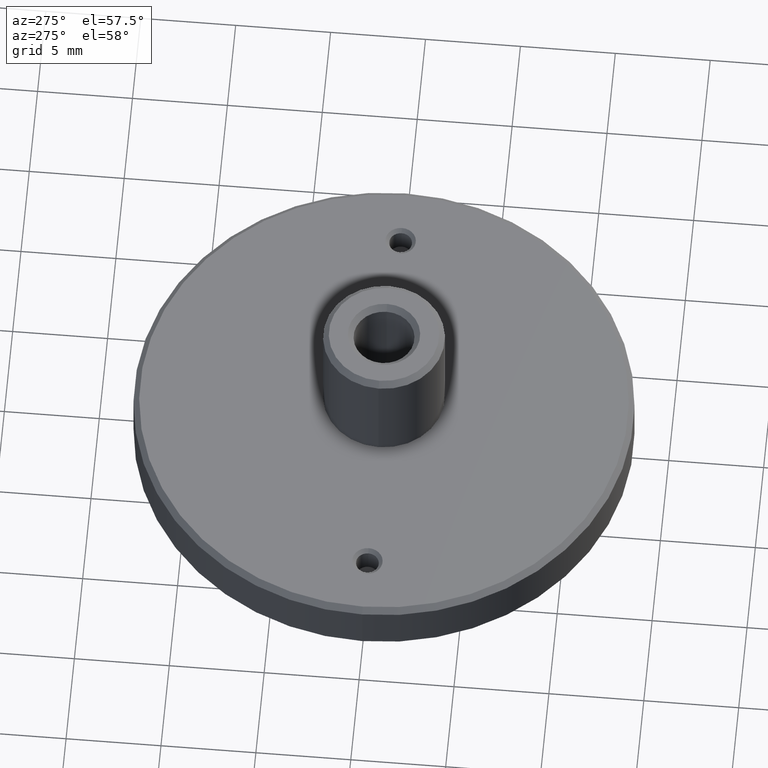
[diagram: clean part render]
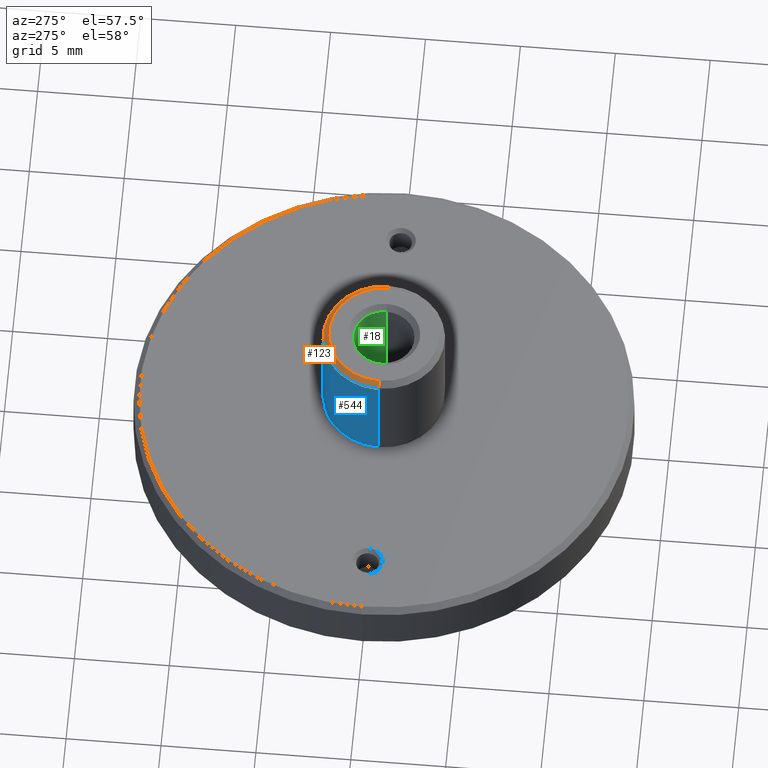
[diagram: same view with three faces highlighted in distinct colors, each labeled with its STEP entity id]
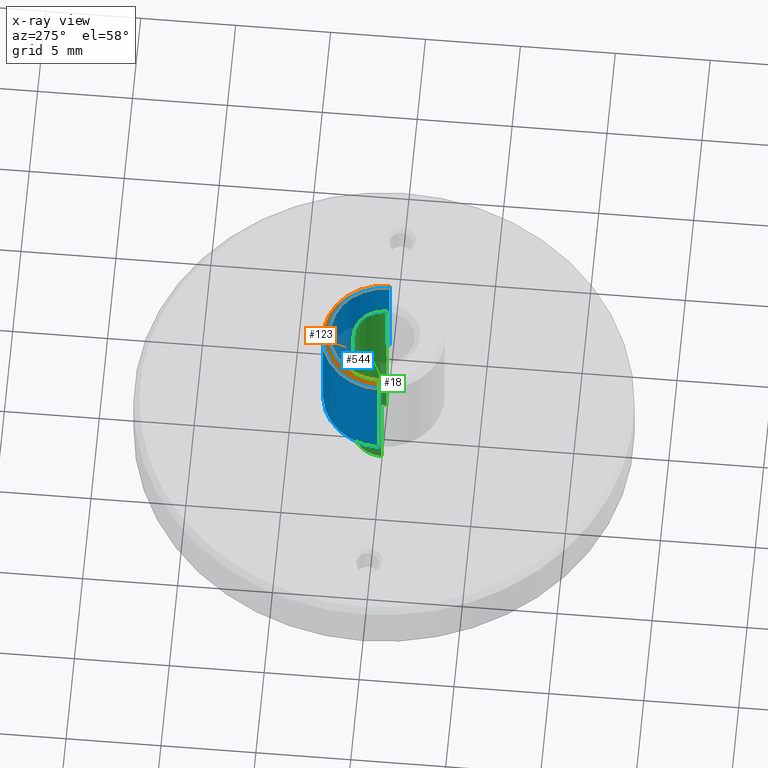
[diagram: x-ray of the same camera — body ghosted, the three highlighted faces saturated]
A machine part, auxiliary view with three faces highlighted in distinct colors.
The next image is the same camera in x-ray (body ghosted, the three faces saturated) — at least one of them is partly hidden behind the body in this view.
Their STEP definitions:

[orange] entity #123 — the highlighted conical surface has half-angle 45 deg.
#16 = DIRECTION ( 'NONE',  ( -0.000000000000000000, -0.000000000000000000, 1.000000000000000000 ) ) ;
#32 = CIRCLE ( 'NONE', #595, 3.200000000000000178 ) ;
#85 = CONICAL_SURFACE ( 'NONE', #631, 2.899999999999999911, 0.7853981633974490562 ) ;
#96 = DIRECTION ( 'NONE',  ( -0.7071067811865481278, 0.000000000000000000, -0.7071067811865470176 ) ) ;
#106 = VERTEX_POINT ( 'NONE', #606 ) ;
#112 = CARTESIAN_POINT ( 'NONE',  ( -3.200000000000000178, 0.000000000000000000, 9.400000000000000355 ) ) ;
#123 = ADVANCED_FACE ( 'NONE', ( #888 ), #85, .T. ) ;
#256 = DIRECTION ( 'NONE',  ( -1.000000000000000000, 0.000000000000000000, 0.000000000000000000 ) ) ;
#286 = EDGE_CURVE ( 'NONE', #106, #750, #422, .T. ) ;
#288 = CARTESIAN_POINT ( 'NONE',  ( 3.200000000000000178, 3.918869757271530460E-16, 9.400000000000000355 ) ) ;
#312 = DIRECTION ( 'NONE',  ( -1.000000000000000000, 0.000000000000000000, 0.000000000000000000 ) ) ;
#323 = CARTESIAN_POINT ( 'NONE',  ( -2.899999999999999911, 0.000000000000000000, 9.700000000000001066 ) ) ;
#328 = EDGE_CURVE ( 'NONE', #106, #918, #454, .T. ) ;
#341 = EDGE_CURVE ( 'NONE', #750, #434, #519, .T. ) ;
#344 = DIRECTION ( 'NONE',  ( 0.000000000000000000, 0.000000000000000000, -1.000000000000000000 ) ) ;
#359 = CARTESIAN_POINT ( 'NONE',  ( 0.000000000000000000, 0.000000000000000000, 9.700000000000001066 ) ) ;
#372 = CARTESIAN_POINT ( 'NONE',  ( 0.000000000000000000, 0.000000000000000000, 9.400000000000000355 ) ) ;
#421 = EDGE_CURVE ( 'NONE', #918, #434, #32, .T. ) ;
#422 = CIRCLE ( 'NONE', #729, 2.899999999999999911 ) ;
#434 = VERTEX_POINT ( 'NONE', #112 ) ;
#454 = LINE ( 'NONE', #880, #773 ) ;
#468 = VECTOR ( 'NONE', #96, 1000.000000000000000 ) ;
#493 = EDGE_LOOP ( 'NONE', ( #506, #758, #808, #862 ) ) ;
#506 = ORIENTED_EDGE ( 'NONE', *, *, #286, .F. ) ;
#519 = LINE ( 'NONE', #653, #468 ) ;
#595 = AXIS2_PLACEMENT_3D ( 'NONE', #372, #16, #312 ) ;
#606 = CARTESIAN_POINT ( 'NONE',  ( 2.899999999999999911, 3.735172737399427639E-16, 9.700000000000001066 ) ) ;
#631 = AXIS2_PLACEMENT_3D ( 'NONE', #899, #344, #256 ) ;
#637 = DIRECTION ( 'NONE',  ( -0.000000000000000000, -0.000000000000000000, 1.000000000000000000 ) ) ;
#653 = CARTESIAN_POINT ( 'NONE',  ( -2.899999999999999911, 0.000000000000000000, 9.700000000000001066 ) ) ;
#729 = AXIS2_PLACEMENT_3D ( 'NONE', #359, #637, #849 ) ;
#750 = VERTEX_POINT ( 'NONE', #323 ) ;
#758 = ORIENTED_EDGE ( 'NONE', *, *, #328, .T. ) ;
#773 = VECTOR ( 'NONE', #885, 1000.000000000000000 ) ;
#808 = ORIENTED_EDGE ( 'NONE', *, *, #421, .T. ) ;
#849 = DIRECTION ( 'NONE',  ( -1.000000000000000000, 0.000000000000000000, 0.000000000000000000 ) ) ;
#862 = ORIENTED_EDGE ( 'NONE', *, *, #341, .F. ) ;
#880 = CARTESIAN_POINT ( 'NONE',  ( 2.899999999999999911, 3.551475717527323832E-16, 9.700000000000001066 ) ) ;
#885 = DIRECTION ( 'NONE',  ( 0.7071067811865481278, 8.659560562354940254E-17, -0.7071067811865470176 ) ) ;
#888 = FACE_OUTER_BOUND ( 'NONE', #493, .T. ) ;
#899 = CARTESIAN_POINT ( 'NONE',  ( 0.000000000000000000, 0.000000000000000000, 9.700000000000001066 ) ) ;
#918 = VERTEX_POINT ( 'NONE', #288 ) ;

[blue] entity #544 — the highlighted cylindrical surface (partial cylindrical patch) has radius 3.2 mm, axis along (0, 0, -1).
#1 = ORIENTED_EDGE ( 'NONE', *, *, #421, .F. ) ;
#16 = DIRECTION ( 'NONE',  ( -0.000000000000000000, -0.000000000000000000, 1.000000000000000000 ) ) ;
#32 = CIRCLE ( 'NONE', #595, 3.200000000000000178 ) ;
#104 = CIRCLE ( 'NONE', #851, 3.200000000000000178 ) ;
#112 = CARTESIAN_POINT ( 'NONE',  ( -3.200000000000000178, 0.000000000000000000, 9.400000000000000355 ) ) ;
#120 = DIRECTION ( 'NONE',  ( 0.000000000000000000, 0.000000000000000000, -1.000000000000000000 ) ) ;
#134 = CYLINDRICAL_SURFACE ( 'NONE', #648, 3.200000000000000178 ) ;
#160 = EDGE_CURVE ( 'NONE', #434, #705, #894, .T. ) ;
#163 = CARTESIAN_POINT ( 'NONE',  ( 3.200000000000000178, 3.918869757271530460E-16, 9.400000000000000355 ) ) ;
#170 = EDGE_LOOP ( 'NONE', ( #1, #287, #711, #658 ) ) ;
#222 = VERTEX_POINT ( 'NONE', #355 ) ;
#287 = ORIENTED_EDGE ( 'NONE', *, *, #681, .T. ) ;
#288 = CARTESIAN_POINT ( 'NONE',  ( 3.200000000000000178, 3.918869757271530460E-16, 9.400000000000000355 ) ) ;
#312 = DIRECTION ( 'NONE',  ( -1.000000000000000000, 0.000000000000000000, 0.000000000000000000 ) ) ;
#355 = CARTESIAN_POINT ( 'NONE',  ( 3.200000000000000178, 3.918869757271530460E-16, 3.700000000000000178 ) ) ;
#366 = LINE ( 'NONE', #163, #400 ) ;
#372 = CARTESIAN_POINT ( 'NONE',  ( 0.000000000000000000, 0.000000000000000000, 9.400000000000000355 ) ) ;
#400 = VECTOR ( 'NONE', #596, 1000.000000000000000 ) ;
#414 = CARTESIAN_POINT ( 'NONE',  ( 0.000000000000000000, 0.000000000000000000, 9.400000000000000355 ) ) ;
#421 = EDGE_CURVE ( 'NONE', #918, #434, #32, .T. ) ;
#434 = VERTEX_POINT ( 'NONE', #112 ) ;
#544 = ADVANCED_FACE ( 'NONE', ( #760 ), #134, .T. ) ;
#561 = VECTOR ( 'NONE', #120, 1000.000000000000000 ) ;
#595 = AXIS2_PLACEMENT_3D ( 'NONE', #372, #16, #312 ) ;
#596 = DIRECTION ( 'NONE',  ( 0.000000000000000000, 0.000000000000000000, -1.000000000000000000 ) ) ;
#648 = AXIS2_PLACEMENT_3D ( 'NONE', #414, #907, #696 ) ;
#658 = ORIENTED_EDGE ( 'NONE', *, *, #160, .F. ) ;
#668 = DIRECTION ( 'NONE',  ( -0.000000000000000000, -0.000000000000000000, 1.000000000000000000 ) ) ;
#681 = EDGE_CURVE ( 'NONE', #918, #222, #366, .T. ) ;
#696 = DIRECTION ( 'NONE',  ( -1.000000000000000000, 0.000000000000000000, 0.000000000000000000 ) ) ;
#705 = VERTEX_POINT ( 'NONE', #866 ) ;
#711 = ORIENTED_EDGE ( 'NONE', *, *, #783, .T. ) ;
#743 = CARTESIAN_POINT ( 'NONE',  ( 0.000000000000000000, 0.000000000000000000, 3.700000000000000178 ) ) ;
#748 = DIRECTION ( 'NONE',  ( -1.000000000000000000, 0.000000000000000000, 0.000000000000000000 ) ) ;
#760 = FACE_OUTER_BOUND ( 'NONE', #170, .T. ) ;
#783 = EDGE_CURVE ( 'NONE', #222, #705, #104, .T. ) ;
#828 = CARTESIAN_POINT ( 'NONE',  ( -3.200000000000000178, 0.000000000000000000, 9.400000000000000355 ) ) ;
#851 = AXIS2_PLACEMENT_3D ( 'NONE', #743, #668, #748 ) ;
#866 = CARTESIAN_POINT ( 'NONE',  ( -3.200000000000000178, 0.000000000000000000, 3.700000000000000178 ) ) ;
#894 = LINE ( 'NONE', #828, #561 ) ;
#907 = DIRECTION ( 'NONE',  ( 0.000000000000000000, 0.000000000000000000, -1.000000000000000000 ) ) ;
#918 = VERTEX_POINT ( 'NONE', #288 ) ;

[green] entity #18 — the highlighted cylindrical surface (edge-blend (fillet) strip) has radius 1.6 mm, axis along (0, -0, 1).
#2 = CARTESIAN_POINT ( 'NONE',  ( 1.600000000000000089, 0.000000000000000000, 0.3000000000000000444 ) ) ;
#18 = ADVANCED_FACE ( 'NONE', ( #470 ), #121, .F. ) ;
#47 = VERTEX_POINT ( 'NONE', #324 ) ;
#93 = DIRECTION ( 'NONE',  ( -0.000000000000000000, -0.000000000000000000, -1.000000000000000000 ) ) ;
#100 = CARTESIAN_POINT ( 'NONE',  ( 0.000000000000000000, 0.000000000000000000, 9.399999999999963052 ) ) ;
#111 = VERTEX_POINT ( 'NONE', #754 ) ;
#119 = AXIS2_PLACEMENT_3D ( 'NONE', #238, #382, #591 ) ;
#121 = CYLINDRICAL_SURFACE ( 'NONE', #347, 1.600000000000000089 ) ;
#135 = VECTOR ( 'NONE', #295, 1000.000000000000000 ) ;
#175 = DIRECTION ( 'NONE',  ( 0.000000000000000000, -0.000000000000000000, 1.000000000000000000 ) ) ;
#238 = CARTESIAN_POINT ( 'NONE',  ( 0.000000000000000000, 0.000000000000000000, 0.2999999999999669598 ) ) ;
#244 = LINE ( 'NONE', #526, #289 ) ;
#255 = CARTESIAN_POINT ( 'NONE',  ( -1.600000000000000089, 1.959434878635765230E-16, 0.2999999999999669598 ) ) ;
#264 = DIRECTION ( 'NONE',  ( 1.000000000000000000, 0.000000000000000000, 0.000000000000000000 ) ) ;
#289 = VECTOR ( 'NONE', #175, 1000.000000000000000 ) ;
#295 = DIRECTION ( 'NONE',  ( 0.000000000000000000, -0.000000000000000000, 1.000000000000000000 ) ) ;
#324 = CARTESIAN_POINT ( 'NONE',  ( 1.600000000000000089, 0.000000000000000000, 0.2999999999999669598 ) ) ;
#342 = DIRECTION ( 'NONE',  ( 0.000000000000000000, -0.000000000000000000, 1.000000000000000000 ) ) ;
#347 = AXIS2_PLACEMENT_3D ( 'NONE', #613, #342, #264 ) ;
#356 = VERTEX_POINT ( 'NONE', #448 ) ;
#358 = LINE ( 'NONE', #2, #135 ) ;
#382 = DIRECTION ( 'NONE',  ( -0.000000000000000000, -0.000000000000000000, 1.000000000000000000 ) ) ;
#396 = ORIENTED_EDGE ( 'NONE', *, *, #612, .F. ) ;
#403 = EDGE_LOOP ( 'NONE', ( #905, #624, #745, #396 ) ) ;
#448 = CARTESIAN_POINT ( 'NONE',  ( -1.600000000000000089, 1.959434878635765230E-16, 9.399999999999963052 ) ) ;
#455 = EDGE_CURVE ( 'NONE', #777, #356, #244, .T. ) ;
#470 = FACE_OUTER_BOUND ( 'NONE', #403, .T. ) ;
#526 = CARTESIAN_POINT ( 'NONE',  ( -1.600000000000000089, 1.959434878635765230E-16, 0.3000000000000000444 ) ) ;
#562 = CIRCLE ( 'NONE', #762, 1.600000000000000089 ) ;
#591 = DIRECTION ( 'NONE',  ( -1.000000000000000000, 0.000000000000000000, 2.066760391300492827E-14 ) ) ;
#612 = EDGE_CURVE ( 'NONE', #356, #111, #562, .T. ) ;
#613 = CARTESIAN_POINT ( 'NONE',  ( 0.000000000000000000, 0.000000000000000000, 0.3000000000000000444 ) ) ;
#624 = ORIENTED_EDGE ( 'NONE', *, *, #709, .F. ) ;
#652 = DIRECTION ( 'NONE',  ( 1.000000000000000000, 0.000000000000000000, 2.276824562219559311E-14 ) ) ;
#709 = EDGE_CURVE ( 'NONE', #47, #777, #789, .T. ) ;
#745 = ORIENTED_EDGE ( 'NONE', *, *, #887, .T. ) ;
#754 = CARTESIAN_POINT ( 'NONE',  ( 1.600000000000000089, 0.000000000000000000, 9.400000000000000355 ) ) ;
#762 = AXIS2_PLACEMENT_3D ( 'NONE', #100, #93, #652 ) ;
#777 = VERTEX_POINT ( 'NONE', #255 ) ;
#789 = CIRCLE ( 'NONE', #119, 1.600000000000000089 ) ;
#887 = EDGE_CURVE ( 'NONE', #47, #111, #358, .T. ) ;
#905 = ORIENTED_EDGE ( 'NONE', *, *, #455, .F. ) ;